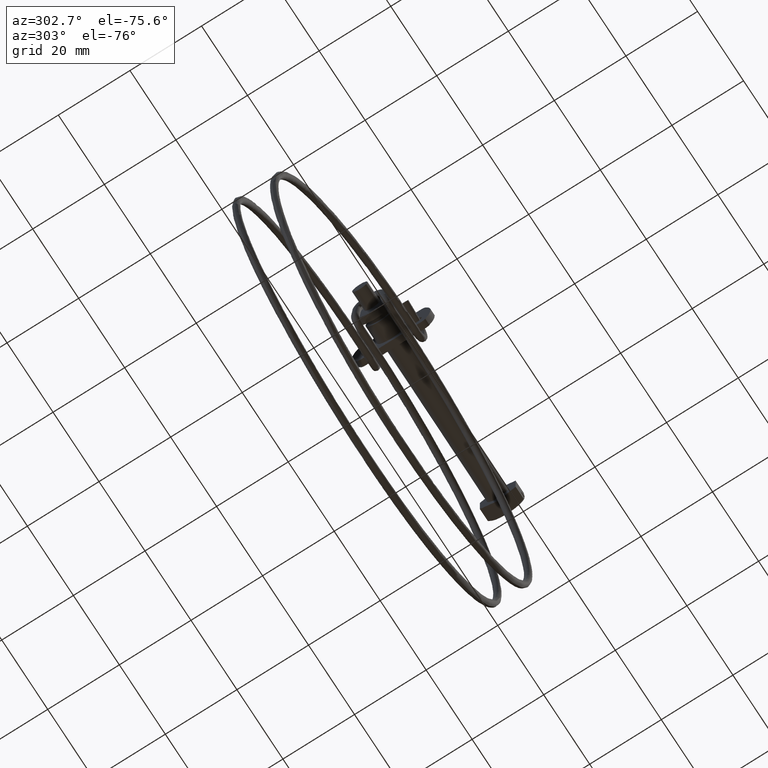
[diagram: clean part render]
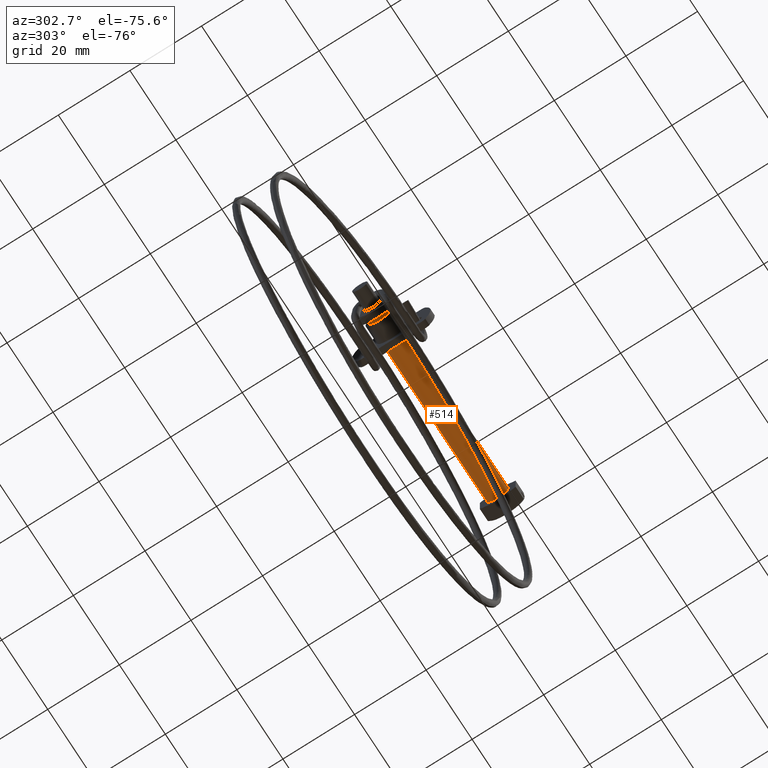
[diagram: same view with one face highlighted and labeled with its STEP entity id]
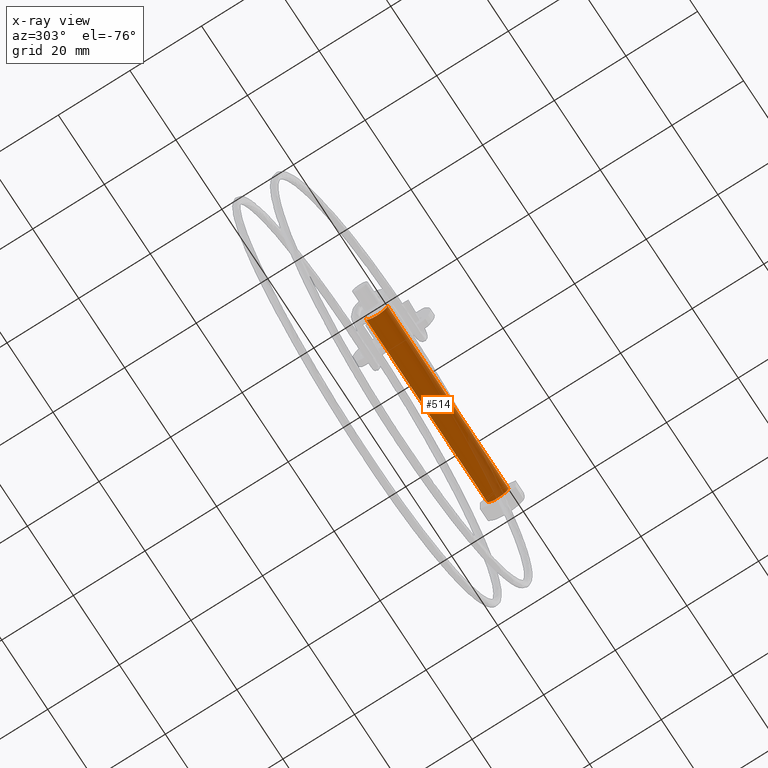
[diagram: x-ray of the same camera — body ghosted, the highlighted face saturated]
A machine part, auxiliary view. The second image highlights one B-rep face of the part: STEP entity #514.
The next image is the same camera in x-ray: the body ghosted, the highlighted face saturated — about 11% of this face is hidden behind the body in this view.
In plain terms, the highlighted face is a freeform B-spline surface patch.
Its self-contained STEP definition (entity closure, byte-faithful):
#412=CARTESIAN_POINT('',(1.315000000000002,2.979028579090910,0.354102703970265));
#413=CARTESIAN_POINT('',(1.315000000000002,2.989162846345729,0.268844185913925));
#414=CARTESIAN_POINT('',(1.315000000000001,2.994404395265511,0.183145618604565));
#415=CARTESIAN_POINT('',(1.315000000000001,3.177550013870076,-2.811258776660945));
#416=CARTESIAN_POINT('',(1.315000000000001,0.183145618604565,-2.994404395265511));
#417=CARTESIAN_POINT('',(1.315000000000001,-2.811258776660945,-3.177550013870076));
#418=CARTESIAN_POINT('',(1.315000000000001,-2.994404395265511,-0.183145618604565));
#419=CARTESIAN_POINT('',(-53.947875000000025,2.979028579090910,0.354102703970265));
#420=CARTESIAN_POINT('',(-53.947875000000010,2.989162846345729,0.268844185913925));
#421=CARTESIAN_POINT('',(-53.947875000000010,2.994404395265511,0.183145618604565));
#422=CARTESIAN_POINT('',(-53.947875000000010,3.177550013870076,-2.811258776660945));
#423=CARTESIAN_POINT('',(-53.947875000000010,0.183145618604565,-2.994404395265511));
#424=CARTESIAN_POINT('',(-53.947875000000010,-2.811258776660945,-3.177550013870076));
#425=CARTESIAN_POINT('',(-53.947875000000010,-2.994404395265511,-0.183145618604565));
#433=(BOUNDED_SURFACE()B_SPLINE_SURFACE(2,1,((#412,#419),(#413,#420),(#414,#421),(#415,#422),(#416,#423),(#417,#424),(#418,#425)),.UNSPECIFIED.,.F.,.F.,.U.)B_SPLINE_SURFACE_WITH_KNOTS((3,2,2,3),(2,2),(0.0,0.198822509939080,5.169385258416070,10.139948006893061),(0.0,55.262875000000022),.UNSPECIFIED.)GEOMETRIC_REPRESENTATION_ITEM()RATIONAL_B_SPLINE_SURFACE(((0.977505800795127,0.977505800795127),(0.988284271247462,0.988284271247462),(1.0,1.0),(0.707106781186548,0.707106781186548),(1.0,1.0),(0.707106781186548,0.707106781186548),(1.0,1.0)))REPRESENTATION_ITEM('')SURFACE());
#434=CARTESIAN_POINT('',(1.703657E-015,2.979028579083503,0.354102704032580));
#435=VERTEX_POINT('',#434);
#436=CARTESIAN_POINT('',(0.0,0.0,-2.999999999999910));
#437=VERTEX_POINT('',#436);
#438=CARTESIAN_POINT('',(1.703657E-015,2.979028579083503,0.354102704032580));
#439=CARTESIAN_POINT('',(0.0,2.999999999999911,0.177672359018699));
#440=CARTESIAN_POINT('',(0.0,2.999999999999910,0.0));
#441=CARTESIAN_POINT('',(0.0,2.999999999999910,-2.999999999999910));
#442=CARTESIAN_POINT('',(0.0,0.0,-2.999999999999910));
#450=(BOUNDED_CURVE()B_SPLINE_CURVE(2,(#438,#439,#440,#441,#442),.UNSPECIFIED.,.F.,.U.)B_SPLINE_CURVE_WITH_KNOTS((3,2,3),(0.729562473508574,0.750000000000000,1.0),.UNSPECIFIED.)CURVE()GEOMETRIC_REPRESENTATION_ITEM()RATIONAL_B_SPLINE_CURVE((0.956026754174027,0.976055948325364,1.0,0.707106781186548,1.0))REPRESENTATION_ITEM(''));
#451=EDGE_CURVE('',#435,#437,#450,.T.);
#452=ORIENTED_EDGE('',*,*,#451,.T.);
#453=CARTESIAN_POINT('',(1.776357E-015,-2.994404395227005,-0.183145619234129));
#454=VERTEX_POINT('',#453);
#455=CARTESIAN_POINT('',(0.0,0.0,-2.999999999999910));
#456=CARTESIAN_POINT('',(0.0,-2.822118199528100,-2.999999999999910));
#457=CARTESIAN_POINT('',(1.776357E-015,-2.994404395227006,-0.183145619234129));
#465=(BOUNDED_CURVE()B_SPLINE_CURVE(2,(#455,#456,#457),.UNSPECIFIED.,.F.,.U.)B_SPLINE_CURVE_WITH_KNOTS((3,3),(0.0,0.239332962169413),.UNSPECIFIED.)CURVE()GEOMETRIC_REPRESENTATION_ITEM()RATIONAL_B_SPLINE_CURVE((1.0,0.719603993368169,0.976072041517703))REPRESENTATION_ITEM(''));
#466=EDGE_CURVE('',#437,#454,#465,.T.);
#467=ORIENTED_EDGE('',*,*,#466,.T.);
#468=CARTESIAN_POINT('',(-52.600000000000009,-2.994404395227003,-0.183145619234128));
#469=VERTEX_POINT('',#468);
#470=CARTESIAN_POINT('',(1.776357E-015,-2.994404395227005,-0.183145619234129));
#471=CARTESIAN_POINT('',(-52.600000000000009,-2.994404395227003,-0.183145619234128));
#472=QUASI_UNIFORM_CURVE('',1,(#470,#471),.UNSPECIFIED.,.F.,.U.);
#473=EDGE_CURVE('',#454,#469,#472,.T.);
#474=ORIENTED_EDGE('',*,*,#473,.T.);
#475=CARTESIAN_POINT('',(-52.600000000000001,0.0,-2.999999999999905));
#476=VERTEX_POINT('',#475);
#477=CARTESIAN_POINT('',(-52.600000000000001,0.0,-2.999999999999905));
#478=CARTESIAN_POINT('',(-52.600000000000001,-2.822118199528104,-2.999999999999906));
#479=CARTESIAN_POINT('',(-52.600000000000009,-2.994404395227002,-0.183145619234128));
#487=(BOUNDED_CURVE()B_SPLINE_CURVE(2,(#477,#478,#479),.UNSPECIFIED.,.F.,.U.)B_SPLINE_CURVE_WITH_KNOTS((3,3),(0.500000000000000,0.739332962169414),.UNSPECIFIED.)CURVE()GEOMETRIC_REPRESENTATION_ITEM()RATIONAL_B_SPLINE_CURVE((1.0,0.719603993368168,0.976072041517704))REPRESENTATION_ITEM(''));
#488=EDGE_CURVE('',#476,#469,#487,.T.);
#489=ORIENTED_EDGE('',*,*,#488,.F.);
#490=CARTESIAN_POINT('',(-52.599999999999987,2.979028579083501,0.354102704032579));
#491=VERTEX_POINT('',#490);
#492=CARTESIAN_POINT('',(-52.599999999999994,2.979028579083501,0.354102704032579));
#493=CARTESIAN_POINT('',(-52.600000000000009,2.999999999999905,0.177672359018698));
#494=CARTESIAN_POINT('',(-52.600000000000001,2.999999999999905,0.0));
#495=CARTESIAN_POINT('',(-52.600000000000001,2.999999999999905,-2.999999999999905));
#496=CARTESIAN_POINT('',(-52.600000000000001,0.0,-2.999999999999905));
#504=(BOUNDED_CURVE()B_SPLINE_CURVE(2,(#492,#493,#494,#495,#496),.UNSPECIFIED.,.F.,.U.)B_SPLINE_CURVE_WITH_KNOTS((3,2,3),(0.229562473508574,0.250000000000000,0.500000000000000),.UNSPECIFIED.)CURVE()GEOMETRIC_REPRESENTATION_ITEM()RATIONAL_B_SPLINE_CURVE((0.956026754174028,0.976055948325364,1.0,0.707106781186547,1.0))REPRESENTATION_ITEM(''));
#505=EDGE_CURVE('',#491,#476,#504,.T.);
#506=ORIENTED_EDGE('',*,*,#505,.F.);
#507=CARTESIAN_POINT('',(1.703657E-015,2.979028579083503,0.354102704032580));
#508=CARTESIAN_POINT('',(-52.599999999999987,2.979028579083501,0.354102704032579));
#509=QUASI_UNIFORM_CURVE('',1,(#507,#508),.UNSPECIFIED.,.F.,.U.);
#510=EDGE_CURVE('',#435,#491,#509,.T.);
#511=ORIENTED_EDGE('',*,*,#510,.F.);
#512=EDGE_LOOP('',(#452,#467,#474,#489,#506,#511));
#513=FACE_OUTER_BOUND('',#512,.T.);
#514=ADVANCED_FACE('',(#513),#433,.T.);